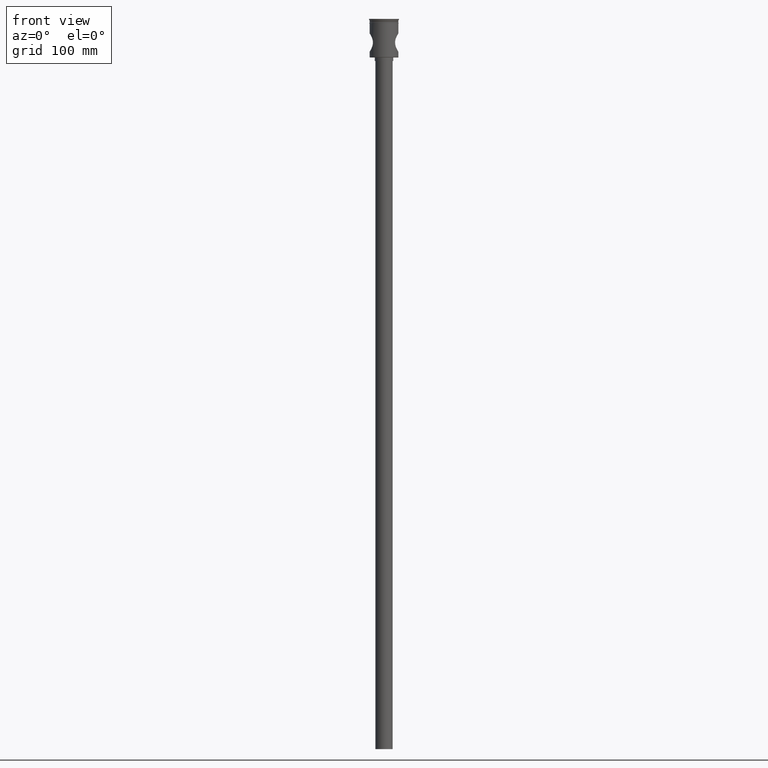
[diagram: clean part render]
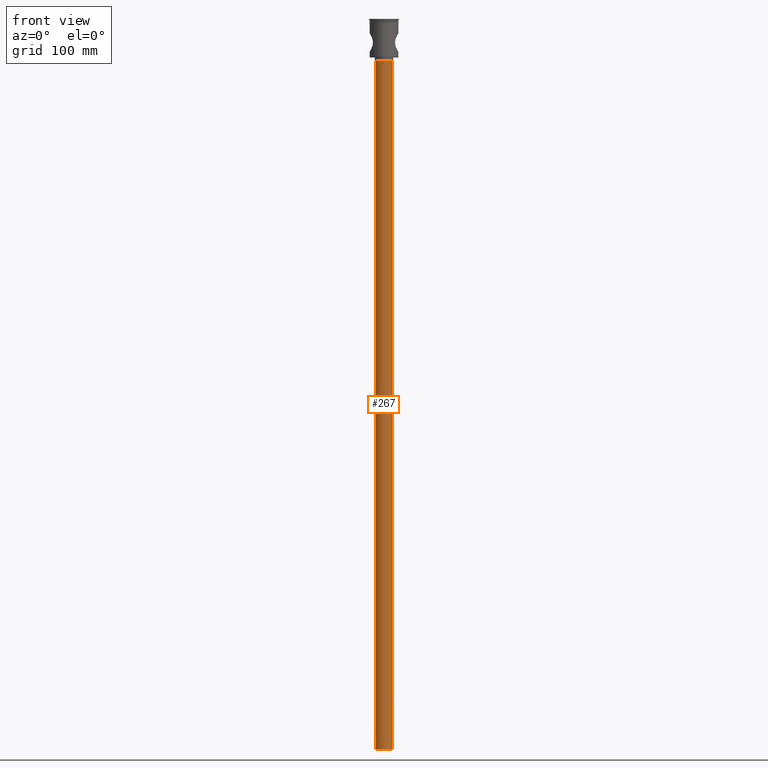
[diagram: same view with one face highlighted and labeled with its STEP entity id]
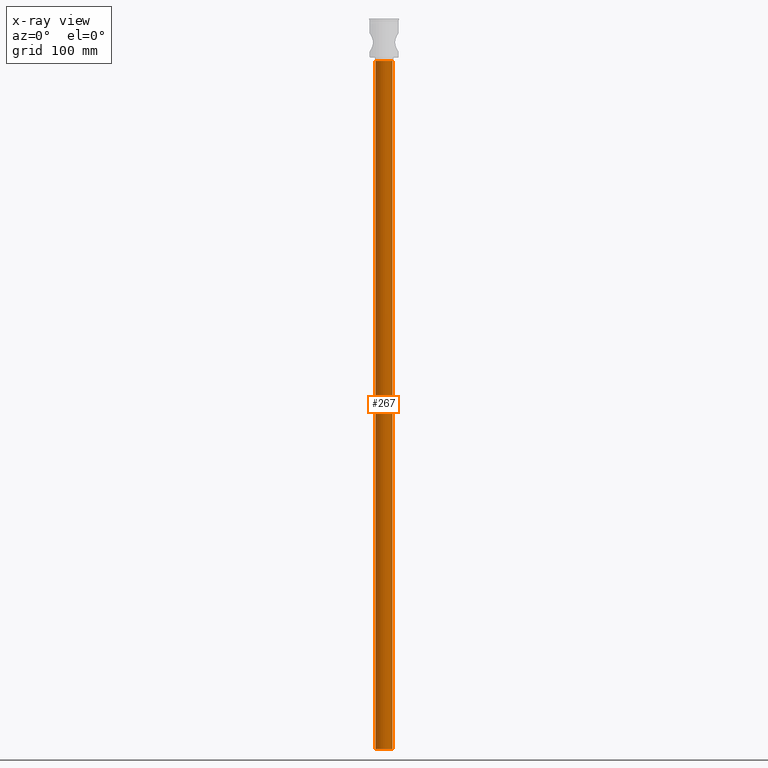
[diagram: x-ray of the same camera — body ghosted, the highlighted face saturated]
A machine part, front view. The second image highlights one B-rep face of the part: STEP entity #267.
The next image is the same camera in x-ray: the body ghosted, the highlighted face saturated — about 0% of this face is hidden behind the body in this view.
In plain terms, the highlighted cylindrical surface (edge-blend (fillet) strip) has radius 7.5 mm, axis along (-0, -0, 1).
Its self-contained STEP definition (entity closure, byte-faithful):
#22 = DIRECTION ( 'NONE',  ( -0.000000000000000000, -0.000000000000000000, 1.000000000000000000 ) ) ;
#24 = EDGE_CURVE ( 'NONE', #662, #321, #55, .T. ) ;
#55 = LINE ( 'NONE', #1368, #82 ) ;
#73 = ORIENTED_EDGE ( 'NONE', *, *, #1030, .T. ) ;
#82 = VECTOR ( 'NONE', #1241, 1000.000000000000000 ) ;
#131 = CARTESIAN_POINT ( 'NONE',  ( 0.000000000000000000, 0.000000000000000000, -36.50000000000000711 ) ) ;
#267 = ADVANCED_FACE ( 'NONE', ( #864 ), #1444, .T. ) ;
#272 = CARTESIAN_POINT ( 'NONE',  ( 0.000000000000000000, 0.000000000000000000, -633.5000000000000000 ) ) ;
#321 = VERTEX_POINT ( 'NONE', #1232 ) ;
#363 = CARTESIAN_POINT ( 'NONE',  ( 0.000000000000000000, 0.000000000000000000, -633.5000000000000000 ) ) ;
#400 = VERTEX_POINT ( 'NONE', #417 ) ;
#411 = AXIS2_PLACEMENT_3D ( 'NONE', #363, #22, #504 ) ;
#417 = CARTESIAN_POINT ( 'NONE',  ( -7.500000000000000000, 9.184850993605147944E-16, -36.50000000000000711 ) ) ;
#468 = ORIENTED_EDGE ( 'NONE', *, *, #672, .F. ) ;
#470 = AXIS2_PLACEMENT_3D ( 'NONE', #272, #757, #612 ) ;
#473 = CARTESIAN_POINT ( 'NONE',  ( -7.500000000000000000, 9.184850993605147944E-16, -633.5000000000000000 ) ) ;
#504 = DIRECTION ( 'NONE',  ( 1.000000000000000000, 0.000000000000000000, 0.000000000000000000 ) ) ;
#612 = DIRECTION ( 'NONE',  ( -1.000000000000000000, 0.000000000000000000, 0.000000000000000000 ) ) ;
#649 = VECTOR ( 'NONE', #828, 1000.000000000000000 ) ;
#662 = VERTEX_POINT ( 'NONE', #1230 ) ;
#672 = EDGE_CURVE ( 'NONE', #662, #1248, #1242, .T. ) ;
#757 = DIRECTION ( 'NONE',  ( 0.000000000000000000, 0.000000000000000000, -1.000000000000000000 ) ) ;
#816 = EDGE_LOOP ( 'NONE', ( #1032, #468, #1203, #73 ) ) ;
#828 = DIRECTION ( 'NONE',  ( -0.000000000000000000, -0.000000000000000000, 1.000000000000000000 ) ) ;
#864 = FACE_OUTER_BOUND ( 'NONE', #816, .T. ) ;
#966 = DIRECTION ( 'NONE',  ( 0.000000000000000000, 0.000000000000000000, -1.000000000000000000 ) ) ;
#1030 = EDGE_CURVE ( 'NONE', #321, #400, #1486, .T. ) ;
#1032 = ORIENTED_EDGE ( 'NONE', *, *, #1154, .F. ) ;
#1057 = CARTESIAN_POINT ( 'NONE',  ( -7.500000000000000000, 9.184850993605147944E-16, -633.5000000000000000 ) ) ;
#1154 = EDGE_CURVE ( 'NONE', #1248, #400, #1304, .T. ) ;
#1203 = ORIENTED_EDGE ( 'NONE', *, *, #24, .T. ) ;
#1230 = CARTESIAN_POINT ( 'NONE',  ( 7.500000000000000000, 0.000000000000000000, -633.5000000000000000 ) ) ;
#1232 = CARTESIAN_POINT ( 'NONE',  ( 7.500000000000000000, 0.000000000000000000, -36.50000000000000711 ) ) ;
#1241 = DIRECTION ( 'NONE',  ( -0.000000000000000000, -0.000000000000000000, 1.000000000000000000 ) ) ;
#1242 = CIRCLE ( 'NONE', #470, 7.500000000000000000 ) ;
#1248 = VERTEX_POINT ( 'NONE', #473 ) ;
#1304 = LINE ( 'NONE', #1057, #649 ) ;
#1368 = CARTESIAN_POINT ( 'NONE',  ( 7.500000000000000000, 0.000000000000000000, -633.5000000000000000 ) ) ;
#1387 = AXIS2_PLACEMENT_3D ( 'NONE', #131, #966, #1448 ) ;
#1444 = CYLINDRICAL_SURFACE ( 'NONE', #411, 7.500000000000000000 ) ;
#1448 = DIRECTION ( 'NONE',  ( -1.000000000000000000, 0.000000000000000000, 0.000000000000000000 ) ) ;
#1486 = CIRCLE ( 'NONE', #1387, 7.500000000000000000 ) ;